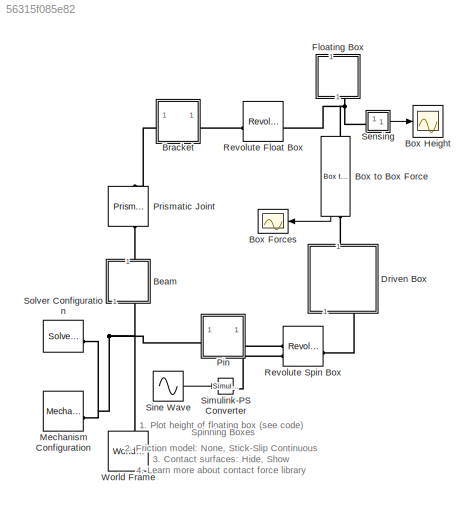
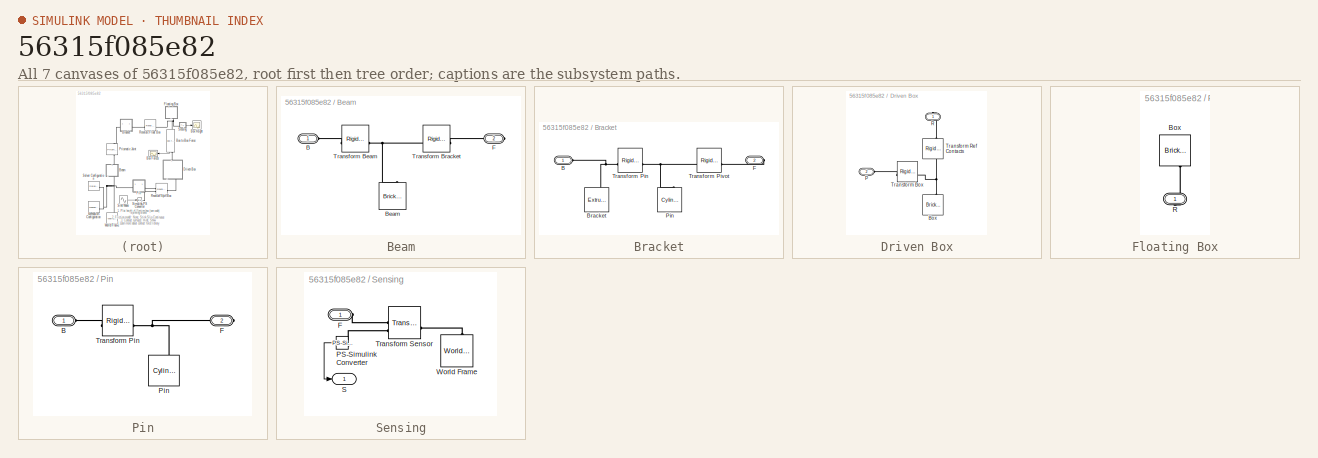
[diagram: thumbnail index - all 7 canvases of the model, root first then tree order]
MODEL slx_56315f085e82
KIND model
CONFIG AbsTol = 1e-5
CONFIG EnableMultiTasking = on
CONFIG FixedStep = auto
CONFIG MaxStep = 1e-2
CONFIG MinStep = auto
CONFIG PostLoadFcn = warning off Simulink:Engine:UsingDefaultMaxStepSize\n
CONFIG PreLoadFcn = boxFl_l = 0.2;\nboxFl_h =0.1;\nboxFl_w =0.1;\n\nboxDr_l =0.3;\nboxDr_w =0.2;\nboxDr_h =0.3;\n
CONFIG RelTol = 1e-4
CONFIG SampleTimeConstraint = Unconstrained
CONFIG SolverName = ode15s
CONFIG StartFcn = tic;
CONFIG StartTime = 0.0
CONFIG StopFcn = Elapsed_Sim_Time = toc;\ndisp(['Elapsed Sim Time = ' num2str(Elapsed_Sim_Time)]);\n
CONFIG StopTime = 12
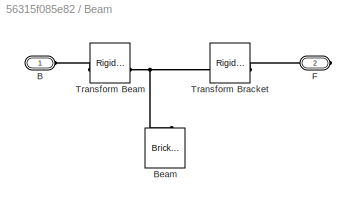
BLOCK [SubSystem] Beam
  NameLocation = left
  Tag = CustomStyle
BLOCK [Reference] Beam/ Beam  REF=sm_lib/Body Elements/Brick Solid
  NameLocation = right
  SourceBlock = sm_lib/Body Elements/Brick Solid
  SourceType = Brick Solid
BLOCK [PMIOPort] Beam/B
  Side = Left
BLOCK [PMIOPort] Beam/F
  Port = 2
  Side = Right
BLOCK [Reference] Beam/Transform Beam  REF=sm_lib/Frames and
Transforms/Rigid
Transform
  SourceBlock = sm_lib/Frames and\nTransforms/Rigid\nTransform
  SourceType = Rigid\nTransform
BLOCK [Reference] Beam/Transform Bracket  REF=sm_lib/Frames and
Transforms/Rigid
Transform
  SourceBlock = sm_lib/Frames and\nTransforms/Rigid\nTransform
  SourceType = Rigid\nTransform
BLOCK [Scope] Box Forces
  Floating = off
  NumInputPorts = 1
  ScopeSpecificationString = Simulink.scopes.TimeScopeBlockCfg('CurrentConfiguration', extmgr.ConfigurationSet(extmgr.Configuration('Core','General UI',true),extmgr.Configuration('Core','Source UI',true),extmgr.Configuration('Sources','WiredSimulink',true,'DataLoggingVariableName','ScopeData1','DataLoggingSaveFormat','StructureWithTime','DataLoggingDecimation','1','DataLoggingDecimateData',true),extmgr.Configuration('Visuals'...<+1705ch>
BLOCK [Scope] Box Height
  Floating = off
  NameLocation = top
  NumInputPorts = 1
  ScopeSpecificationString = Simulink.scopes.TimeScopeBlockCfg('CurrentConfiguration', extmgr.ConfigurationSet(extmgr.Configuration('Core','General UI',true,'FigureColor',[0.501960784313725 0.501960784313725 0.501960784313725]),extmgr.Configuration('Core','Source UI',true),extmgr.Configuration('Sources','WiredSimulink',true,'DataLoggingSaveFormat','StructureWithTime','DataLoggingDecimation','1'),extmgr.Configuration('Visuals'...<+2624ch>
BLOCK [Reference] Box to Box Force  REF=Contact_Forces_Lib/2D/Composite
Forces/Box to Box Force
  NameLocation = right
  SourceBlock = Contact_Forces_Lib/2D/Composite\nForces/Box to Box Force
  SourceProductName = Simscape Multibody Contact Forces Library
  SourceType = Box to Box Contact Force
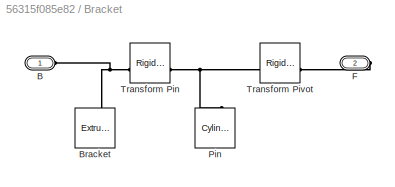
BLOCK [SubSystem] Bracket
  Tag = CustomStyle
BLOCK [PMIOPort] Bracket/B
  Side = Left
BLOCK [Reference] Bracket/Bracket  REF=sm_lib/Body Elements/Extruded Solid
  NameLocation = right
  SourceBlock = sm_lib/Body Elements/Extruded Solid
  SourceType = Extruded Solid
BLOCK [PMIOPort] Bracket/F
  Port = 2
  Side = Right
BLOCK [Reference] Bracket/Pin  REF=sm_lib/Body Elements/Cylindrical Solid
  NameLocation = right
  SourceBlock = sm_lib/Body Elements/Cylindrical Solid
  SourceType = Cylindrical Solid
BLOCK [Reference] Bracket/Transform Pin  REF=sm_lib/Frames and
Transforms/Rigid
Transform
  SourceBlock = sm_lib/Frames and\nTransforms/Rigid\nTransform
  SourceType = Rigid\nTransform
BLOCK [Reference] Bracket/Transform Pivot  REF=sm_lib/Frames and
Transforms/Rigid
Transform
  SourceBlock = sm_lib/Frames and\nTransforms/Rigid\nTransform
  SourceType = Rigid\nTransform
BLOCK [SubSystem] Driven Box
  NameLocation = right
  Tag = CustomStyle
BLOCK [Reference] Driven Box/Box  REF=sm_lib/Body Elements/Brick Solid
  NameLocation = right
  SourceBlock = sm_lib/Body Elements/Brick Solid
  SourceType = Brick Solid
BLOCK [PMIOPort] Driven Box/P
  Port = 2
  Side = Left
BLOCK [PMIOPort] Driven Box/R
  NameLocation = right
  Side = Right
BLOCK [Reference] Driven Box/Transform Box  REF=sm_lib/Frames and
Transforms/Rigid
Transform
  SourceBlock = sm_lib/Frames and\nTransforms/Rigid\nTransform
  SourceType = Rigid\nTransform
BLOCK [Reference] Driven Box/Transform Ref Contacts  REF=sm_lib/Frames and
Transforms/Rigid
Transform
  NameLocation = right
  SourceBlock = sm_lib/Frames and\nTransforms/Rigid\nTransform
  SourceType = Rigid\nTransform
BLOCK [SubSystem] Floating Box
  NameLocation = right
  Tag = CustomStyle
BLOCK [Reference] Floating Box/Box  REF=sm_lib/Body Elements/Brick Solid
  NameLocation = right
  SourceBlock = sm_lib/Body Elements/Brick Solid
  SourceType = Brick Solid
BLOCK [PMIOPort] Floating Box/R
  NameLocation = right
  Side = Right
BLOCK [Reference] Mechanism Configuration  REF=sm_lib/Utilities/Mechanism
Configuration
  SourceBlock = sm_lib/Utilities/Mechanism\nConfiguration
  SourceType = Mechanism\nConfiguration
BLOCK [SubSystem] Pin
  NameLocation = top
  Tag = CustomStyle
BLOCK [PMIOPort] Pin/B
  Side = Left
BLOCK [PMIOPort] Pin/F
  Port = 2
  Side = Right
BLOCK [Reference] Pin/Pin  REF=sm_lib/Body Elements/Cylindrical Solid
  NameLocation = right
  SourceBlock = sm_lib/Body Elements/Cylindrical Solid
  SourceType = Cylindrical Solid
BLOCK [Reference] Pin/Transform Pin  REF=sm_lib/Frames and
Transforms/Rigid
Transform
  SourceBlock = sm_lib/Frames and\nTransforms/Rigid\nTransform
  SourceType = Rigid\nTransform
BLOCK [Reference] Prismatic Joint  REF=sm_lib/Joints/Prismatic
Joint
  NameLocation = left
  SourceBlock = sm_lib/Joints/Prismatic\nJoint
  SourceType = Prismatic\nJoint
BLOCK [Reference] Revolute Float Box  REF=sm_lib/Joints/Revolute Joint
  SourceBlock = sm_lib/Joints/Revolute Joint
  SourceType = Revolute Joint
BLOCK [Reference] Revolute Spin Box  REF=sm_lib/Joints/Revolute Joint
  SourceBlock = sm_lib/Joints/Revolute Joint
  SourceType = Revolute Joint
BLOCK [SubSystem] Sensing
  NameLocation = top
BLOCK [PMIOPort] Sensing/F
  NameLocation = top
  Side = Left
BLOCK [Reference] Sensing/PS-Simulink Converter  REF=nesl_utility/PS-Simulink
Converter
  NameLocation = top
  SourceBlock = nesl_utility/PS-Simulink\nConverter
  SourceType = PS-Simulink\nConverter
BLOCK [Outport] Sensing/S
  VectorParamsAs1DForOutWhenUnconnected = off
BLOCK [Reference] Sensing/Transform Sensor  REF=sm_lib/Frames and
Transforms/Transform
Sensor
  SourceBlock = sm_lib/Frames and\nTransforms/Transform\nSensor
  SourceType = Transform\nSensor
BLOCK [Reference] Sensing/World Frame  REF=sm_lib/Frames and
Transforms/World Frame
  NameLocation = right
  SourceBlock = sm_lib/Frames and\nTransforms/World Frame
  SourceType = World Frame
BLOCK [Reference] Simulink-PS Converter  REF=nesl_utility/Simulink-PS
Converter
  SourceBlock = nesl_utility/Simulink-PS\nConverter
  SourceType = Simulink-PS\nConverter
BLOCK [Sin] Sine Wave
  Amplitude = 360
  Frequency = 4*pi/12
  SampleTime = 0
BLOCK [Reference] Solver Configuration  REF=nesl_utility/Solver
Configuration
  SourceBlock = nesl_utility/Solver\nConfiguration
  SourceType = Solver\nConfiguration
BLOCK [Reference] World Frame  REF=sm_lib/Frames and
Transforms/World Frame
  NameLocation = right
  SourceBlock = sm_lib/Frames and\nTransforms/World Frame
  SourceType = World Frame
ANNOTATION (root): 1. Plot height of floating box ( see code ) 2. Friction model: None , Stick-Slip Continuous 3. Contact surfaces: Hide , Show 4. Learn more about contact force library
ANNOTATION (root): Spinning Boxes
LINE Box to Box Force:1 -> Box Forces:1
LINE Sensing/PS-Simulink Converter:1 -> Sensing/S:1
LINE Sensing:1 -> Box Height:1
LINE Sine Wave:1 -> Simulink-PS Converter:1
PNET net1: Beam/ Beam:RConn1 -- Beam/Transform Beam:RConn1 -- Beam/Transform Bracket:LConn1
PLINE Beam/B:RConn1 -- Beam/Transform Beam:LConn1
PLINE Beam/F:RConn1 -- Beam/Transform Bracket:RConn1
PNET net2: Beam:LConn1 -- Mechanism Configuration:RConn1 -- Pin:LConn1 -- Solver Configuration:RConn1 -- World Frame:RConn1
PLINE Beam:RConn1 -- Prismatic Joint:LConn1
PNET net3: Box to Box Force:LConn1 -- Floating Box:RConn1 -- Revolute Float Box:RConn1 -- Sensing:LConn1
PLINE Box to Box Force:RConn1 -- Driven Box:RConn1
PNET net4: Bracket/B:RConn1 -- Bracket/Bracket:RConn1 -- Bracket/Transform Pin:LConn1
PLINE Bracket/F:RConn1 -- Bracket/Transform Pivot:RConn1
PNET net5: Bracket/Pin:RConn1 -- Bracket/Transform Pin:RConn1 -- Bracket/Transform Pivot:LConn1
PLINE Bracket:LConn1 -- Prismatic Joint:RConn1
PLINE Bracket:RConn1 -- Revolute Float Box:LConn1
PNET net6: Driven Box/Box:RConn1 -- Driven Box/Transform Box:LConn1 -- Driven Box/Transform Ref Contacts:LConn1
PLINE Driven Box/P:RConn1 -- Driven Box/Transform Box:RConn1
PLINE Driven Box/R:RConn1 -- Driven Box/Transform Ref Contacts:RConn1
PLINE Driven Box:LConn1 -- Revolute Spin Box:RConn1
PLINE Floating Box/Box:RConn1 -- Floating Box/R:RConn1
PLINE Pin/B:RConn1 -- Pin/Transform Pin:LConn1
PNET net7: Pin/F:RConn1 -- Pin/Pin:RConn1 -- Pin/Transform Pin:RConn1
PLINE Pin:RConn1 -- Revolute Spin Box:LConn1
PLINE Revolute Spin Box:LConn2 -- Simulink-PS Converter:RConn1
PLINE Sensing/F:RConn1 -- Sensing/Transform Sensor:RConn1
PLINE Sensing/PS-Simulink Converter:LConn1 -- Sensing/Transform Sensor:RConn2
PLINE Sensing/Transform Sensor:LConn1 -- Sensing/World Frame:RConn1
note: PNET lines group multi-terminal physical nets as a canonical sorted terminal list (undirected conserving connections); 2-terminal nets keep the pairwise PLINE form
